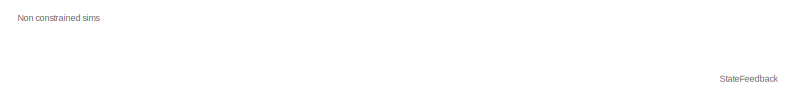
[diagram: root canvas - part 1/9, top left region]
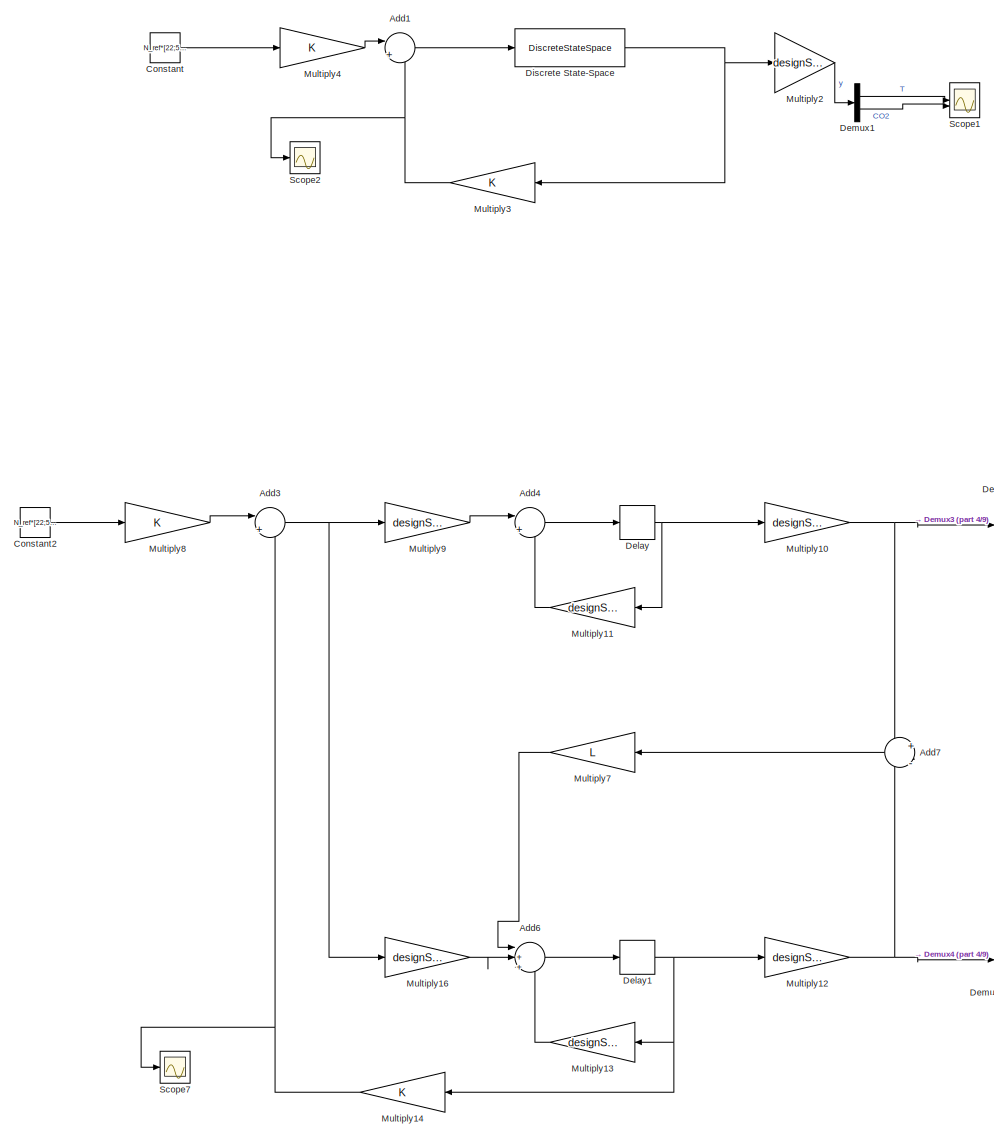
[diagram: root canvas - part 2/9, top left region]
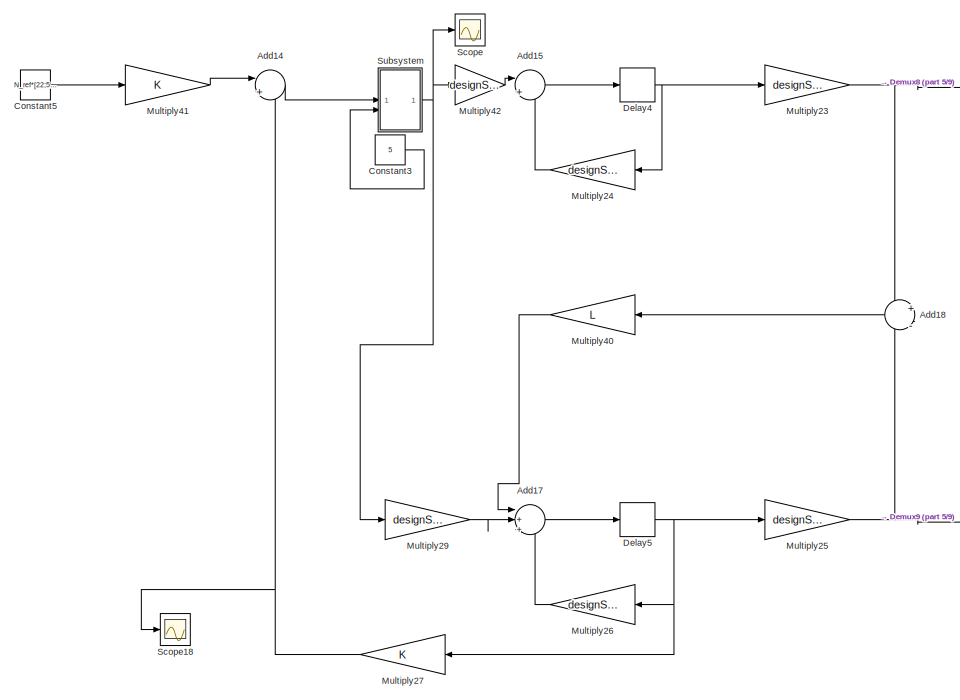
[diagram: root canvas - part 3/9, middle right region]
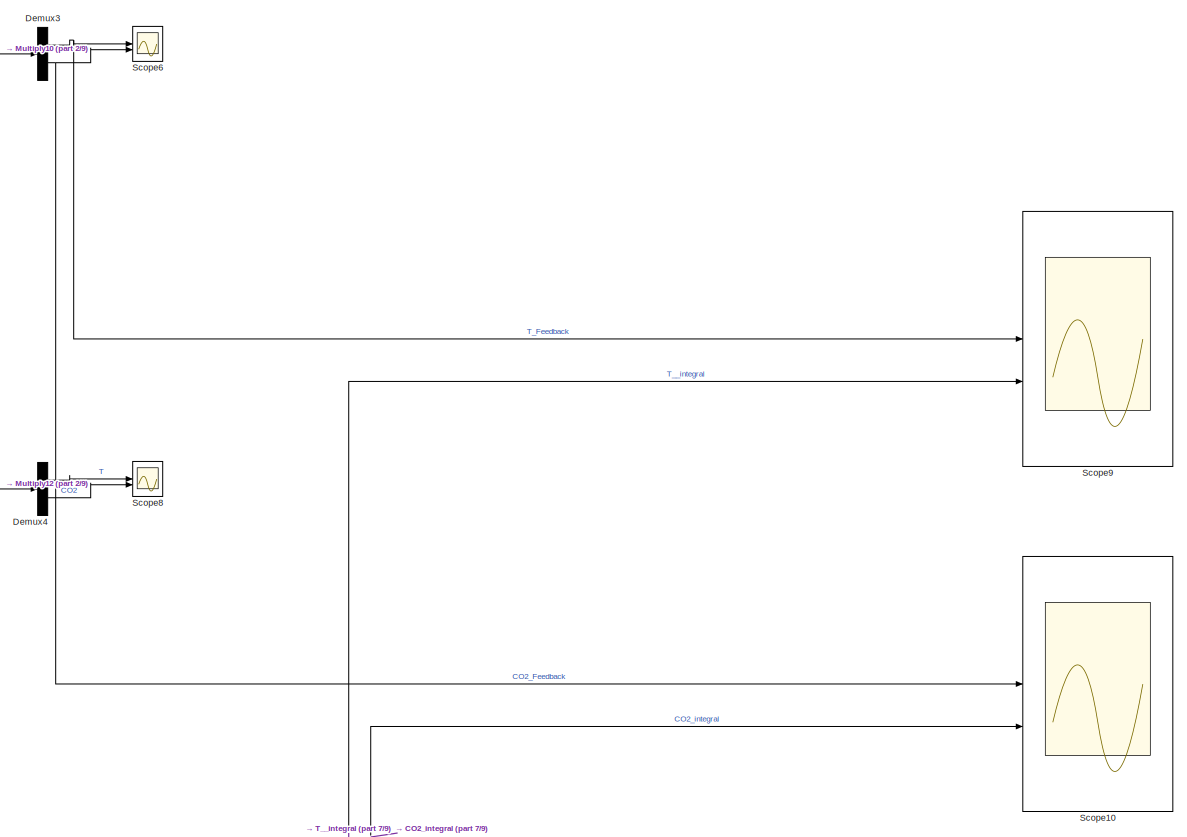
[diagram: root canvas - part 4/9, central region]
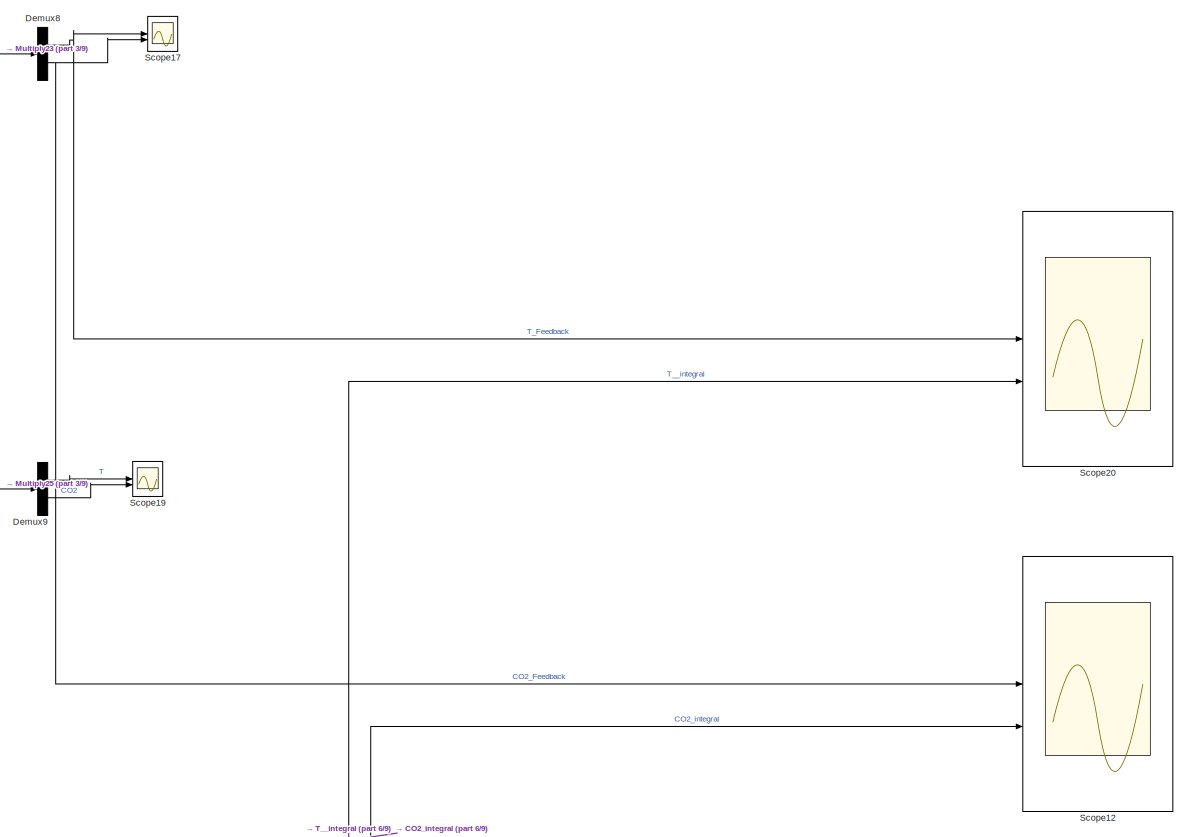
[diagram: root canvas - part 5/9, middle right region]
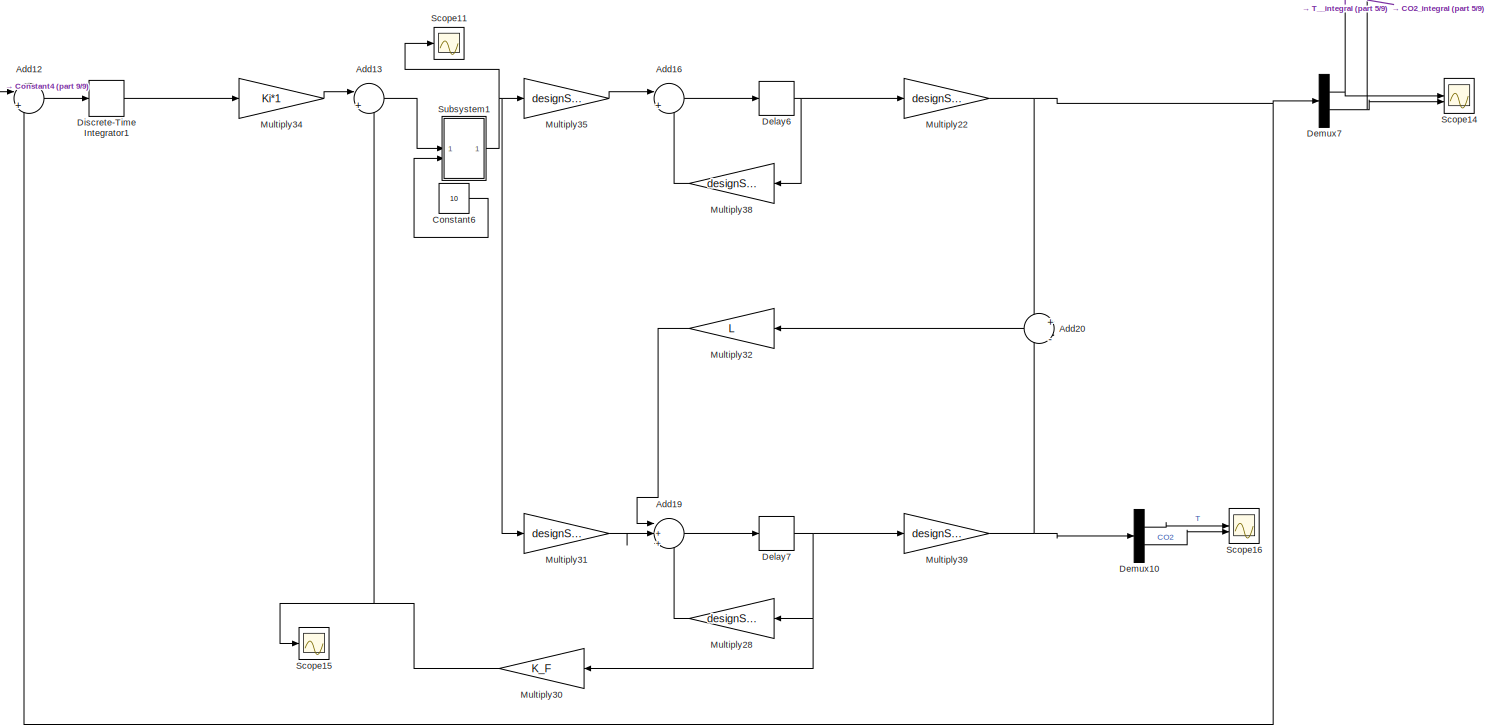
[diagram: root canvas - part 6/9, bottom right region]
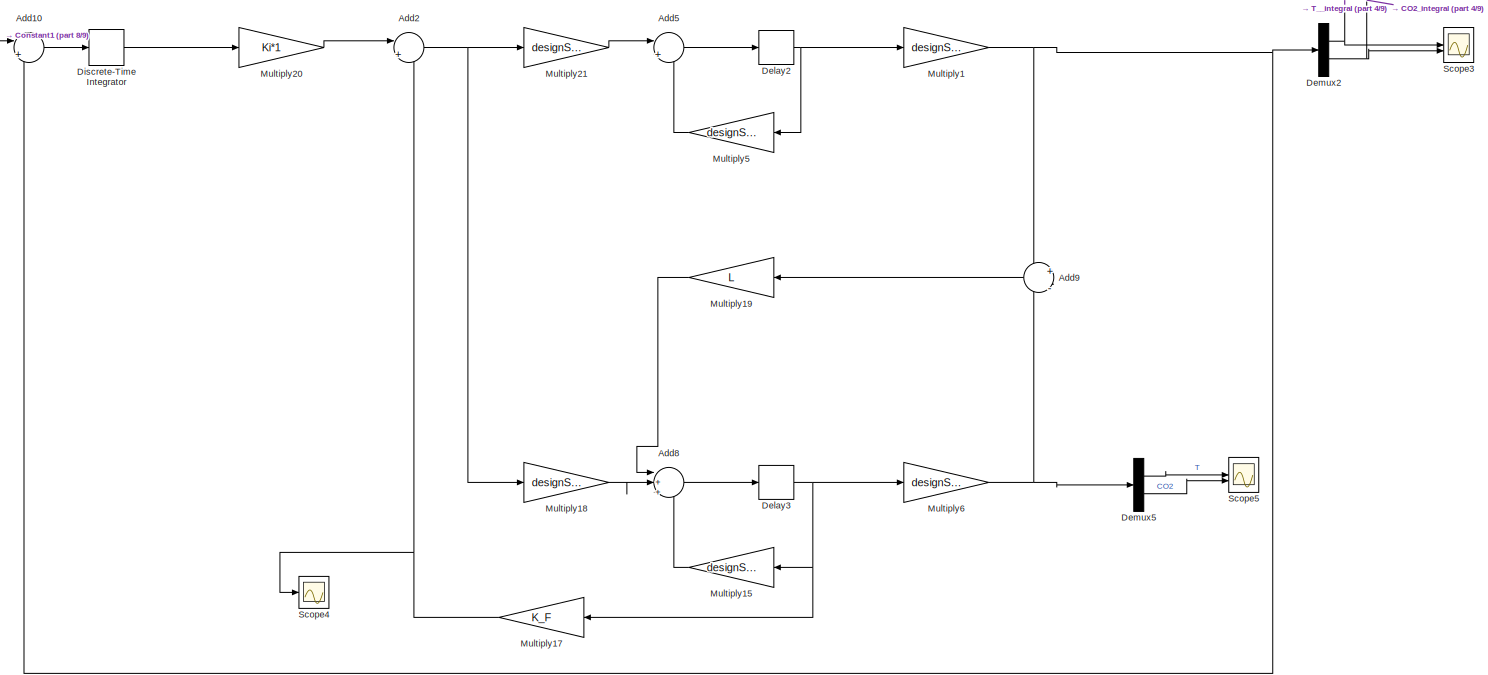
[diagram: root canvas - part 7/9, bottom left region]
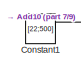
[diagram: root canvas - part 8/9, bottom left region]
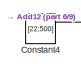
[diagram: root canvas - part 9/9, bottom center region]
MODEL slx_caf62d61fc65
KIND model
CONFIG AbsTol = auto
CONFIG EnableMultiTasking = off
CONFIG FixedStep = auto
CONFIG MaxStep = auto
CONFIG MinStep = auto
CONFIG RelTol = 1e-3
CONFIG SampleTimeConstraint = Unconstrained
CONFIG SolverName = VariableStepAuto
CONFIG StartTime = 0.0
CONFIG StopTime = 15000
BLOCK [Sum] Add1
  Inputs = |+-
BLOCK [Sum] Add10
  Inputs = |+-
BLOCK [Sum] Add12
  Inputs = |+-
BLOCK [Sum] Add13
  Inputs = |+-
BLOCK [Sum] Add14
  Inputs = |+-
BLOCK [Sum] Add15
  Inputs = |++
BLOCK [Sum] Add16
  Inputs = |++
BLOCK [Sum] Add17
  Inputs = |+++
BLOCK [Sum] Add18
  Inputs = +|-
  NameLocation = top
BLOCK [Sum] Add19
  Inputs = |+++
BLOCK [Sum] Add2
  Inputs = |+-
BLOCK [Sum] Add20
  Inputs = +|-
  NameLocation = top
BLOCK [Sum] Add3
  Inputs = |+-
BLOCK [Sum] Add4
  Inputs = |++
BLOCK [Sum] Add5
  Inputs = |++
BLOCK [Sum] Add6
  Inputs = |+++
BLOCK [Sum] Add7
  Inputs = +|-
  NameLocation = top
BLOCK [Sum] Add8
  Inputs = |+++
BLOCK [Sum] Add9
  Inputs = +|-
  NameLocation = top
BLOCK [Constant] Constant
  Value = N_ref*[22;500]
BLOCK [Constant] Constant1
  Value = [22;500]
BLOCK [Constant] Constant2
  Value = N_ref*[22;500]
BLOCK [Constant] Constant3
  Value = 5
BLOCK [Constant] Constant4
  Value = [22;500]
BLOCK [Constant] Constant5
  Value = N_ref*[22;500]
BLOCK [Constant] Constant6
  Value = 10
BLOCK [Delay] Delay
  DelayLength = 1
  InputPortMap = u0
BLOCK [Delay] Delay1
  DelayLength = 1
  InputPortMap = u0
BLOCK [Delay] Delay2
  DelayLength = 1
  InputPortMap = u0
BLOCK [Delay] Delay3
  DelayLength = 1
  InputPortMap = u0
BLOCK [Delay] Delay4
  DelayLength = 1
  InputPortMap = u0
BLOCK [Delay] Delay5
  DelayLength = 1
  InputPortMap = u0
BLOCK [Delay] Delay6
  DelayLength = 1
  InputPortMap = u0
BLOCK [Delay] Delay7
  DelayLength = 1
  InputPortMap = u0
BLOCK [Demux] Demux1
  Outputs = 2
BLOCK [Demux] Demux10
  Outputs = 2
BLOCK [Demux] Demux2
  Outputs = 2
BLOCK [Demux] Demux3
  Outputs = 2
BLOCK [Demux] Demux4
  Outputs = 2
BLOCK [Demux] Demux5
  Outputs = 2
BLOCK [Demux] Demux7
  Outputs = 2
BLOCK [Demux] Demux8
  Outputs = 2
BLOCK [Demux] Demux9
  Outputs = 2
BLOCK [DiscreteStateSpace] Discrete State-Space
  A = designSys.A
  B = designSys.B
  C = [1,0;0,1]
  D = designSys.D
  SampleTime = 15
BLOCK [DiscreteIntegrator] Discrete-Time Integrator
  ICPrevOutput = DiscIntNeverNeededParam
  ICPrevScaledInput = DiscIntNeverNeededParam
  InitialConditionSetting = Auto
  IntegratorMethod = Integration: Backward Euler
  SampleTime = 15
BLOCK [DiscreteIntegrator] Discrete-Time Integrator1
  ICPrevOutput = DiscIntNeverNeededParam
  ICPrevScaledInput = DiscIntNeverNeededParam
  InitialConditionSetting = Auto
  IntegratorMethod = Integration: Backward Euler
  SampleTime = 15
BLOCK [Gain] Multiply1
  Gain = designSys.C
  Multiplication = Matrix(K*u)
BLOCK [Gain] Multiply10
  Gain = designSys.C
  Multiplication = Matrix(K*u)
BLOCK [Gain] Multiply11
  Gain = designSys.A
  Multiplication = Matrix(K*u)
  NameLocation = top
BLOCK [Gain] Multiply12
  Gain = designSys.C
  Multiplication = Matrix(K*u)
BLOCK [Gain] Multiply13
  Gain = designSys.A
  Multiplication = Matrix(K*u)
  NameLocation = top
BLOCK [Gain] Multiply14
  Gain = K
  Multiplication = Matrix(K*u)
  NameLocation = top
BLOCK [Gain] Multiply15
  Gain = designSys.A
  Multiplication = Matrix(K*u)
  NameLocation = top
BLOCK [Gain] Multiply16
  Gain = designSys.B
  Multiplication = Matrix(K*u)
BLOCK [Gain] Multiply17
  Gain = K_F
  Multiplication = Matrix(K*u)
  NameLocation = top
BLOCK [Gain] Multiply18
  Gain = designSys.B
  Multiplication = Matrix(K*u)
BLOCK [Gain] Multiply19
  Gain = L
  Multiplication = Matrix(K*u)
  NameLocation = top
BLOCK [Gain] Multiply2
  Gain = designSys.C
  Multiplication = Matrix(K*u)
BLOCK [Gain] Multiply20
  Gain = Ki*1
  Multiplication = Matrix(K*u)
BLOCK [Gain] Multiply21
  Gain = designSys.B
  Multiplication = Matrix(K*u)
BLOCK [Gain] Multiply22
  Gain = designSys.C
  Multiplication = Matrix(K*u)
BLOCK [Gain] Multiply23
  Gain = designSys.C
  Multiplication = Matrix(K*u)
BLOCK [Gain] Multiply24
  Gain = designSys.A
  Multiplication = Matrix(K*u)
  NameLocation = top
BLOCK [Gain] Multiply25
  Gain = designSys.C
  Multiplication = Matrix(K*u)
BLOCK [Gain] Multiply26
  Gain = designSys.A
  Multiplication = Matrix(K*u)
  NameLocation = top
BLOCK [Gain] Multiply27
  Gain = K
  Multiplication = Matrix(K*u)
  NameLocation = top
BLOCK [Gain] Multiply28
  Gain = designSys.A
  Multiplication = Matrix(K*u)
  NameLocation = top
BLOCK [Gain] Multiply29
  Gain = designSys.B
  Multiplication = Matrix(K*u)
BLOCK [Gain] Multiply3
  Gain = K
  Multiplication = Matrix(K*u)
  NameLocation = top
BLOCK [Gain] Multiply30
  Gain = K_F
  Multiplication = Matrix(K*u)
  NameLocation = top
BLOCK [Gain] Multiply31
  Gain = designSys.B
  Multiplication = Matrix(K*u)
BLOCK [Gain] Multiply32
  Gain = L
  Multiplication = Matrix(K*u)
  NameLocation = top
BLOCK [Gain] Multiply34
  Gain = Ki*1
  Multiplication = Matrix(K*u)
BLOCK [Gain] Multiply35
  Gain = designSys.B
  Multiplication = Matrix(K*u)
BLOCK [Gain] Multiply38
  Gain = designSys.A
  Multiplication = Matrix(K*u)
  NameLocation = top
BLOCK [Gain] Multiply39
  Gain = designSys.C
  Multiplication = Matrix(K*u)
BLOCK [Gain] Multiply4
  Multiplication = Matrix(K*u)
BLOCK [Gain] Multiply40
  Gain = L
  Multiplication = Matrix(K*u)
  NameLocation = top
BLOCK [Gain] Multiply41
  Multiplication = Matrix(K*u)
BLOCK [Gain] Multiply42
  Gain = designSys.B
  Multiplication = Matrix(K*u)
BLOCK [Gain] Multiply5
  Gain = designSys.A
  Multiplication = Matrix(K*u)
  NameLocation = top
BLOCK [Gain] Multiply6
  Gain = designSys.C
  Multiplication = Matrix(K*u)
BLOCK [Gain] Multiply7
  Gain = L
  Multiplication = Matrix(K*u)
  NameLocation = top
BLOCK [Gain] Multiply8
  Multiplication = Matrix(K*u)
BLOCK [Gain] Multiply9
  Gain = designSys.B
  Multiplication = Matrix(K*u)
BLOCK [Scope] Scope
  Floating = off
  NumInputPorts = 1
  ScopeSpecificationString = Simulink.scopes.TimeScopeBlockCfg('CurrentConfiguration', extmgr.ConfigurationSet(extmgr.Configuration('Core','General UI',true),extmgr.Configuration('Core','Source UI',true),extmgr.Configuration('Sources','WiredSimulink',true,'DataLoggingVariableName','ScopeData9'),extmgr.Configuration('Visuals','Time Domain',true,'SerializedDisplays',{struct('MinYLimReal','-8.06818','MaxYLimReal','12.15909','YLa...<+1505ch>
BLOCK [Scope] Scope1
  Floating = off
  NumInputPorts = 2
  ScopeSpecificationString = Simulink.scopes.TimeScopeBlockCfg('CurrentConfiguration', extmgr.ConfigurationSet(extmgr.Configuration('Core','General UI',true),extmgr.Configuration('Core','Source UI',true),extmgr.Configuration('Sources','WiredSimulink',true),extmgr.Configuration('Visuals','Time Domain',true,'SerializedDisplays',{struct('MinYLimReal','-113.83217','MaxYLimReal','1024.48949','YLabelReal','','MinYLimMag',' 0.00000'...<+1469ch>
BLOCK [Scope] Scope10
  Floating = off
  NumInputPorts = 2
  ScopeSpecificationString = Simulink.scopes.TimeScopeBlockCfg('CurrentConfiguration', extmgr.ConfigurationSet(extmgr.Configuration('Core','General UI',true),extmgr.Configuration('Core','Source UI',true),extmgr.Configuration('Sources','WiredSimulink',true,'DataLoggingVariableName','ScopeData8'),extmgr.Configuration('Visuals','Time Domain',true,'SerializedDisplays',{struct('MinYLimReal','-16.01562','MaxYLimReal','524.60937','Y...<+1453ch>
BLOCK [Scope] Scope11
  Floating = off
  NumInputPorts = 1
  ScopeSpecificationString = Simulink.scopes.TimeScopeBlockCfg('CurrentConfiguration', extmgr.ConfigurationSet(extmgr.Configuration('Core','General UI',true),extmgr.Configuration('Core','Source UI',true),extmgr.Configuration('Sources','WiredSimulink',true,'DataLoggingVariableName','ScopeData11'),extmgr.Configuration('Visuals','Time Domain',true,'SerializedDisplays',{struct('MinYLimReal','-2.40764','MaxYLimReal','18.96464','YL...<+1506ch>
BLOCK [Scope] Scope12
  Floating = off
  NumInputPorts = 2
  ScopeSpecificationString = Simulink.scopes.TimeScopeBlockCfg('CurrentConfiguration', extmgr.ConfigurationSet(extmgr.Configuration('Core','General UI',true),extmgr.Configuration('Core','Source UI',true),extmgr.Configuration('Sources','WiredSimulink',true,'DataLoggingVariableName','ScopeData10'),extmgr.Configuration('Visuals','Time Domain',true,'SerializedDisplays',{struct('MinYLimReal','-16.01562','MaxYLimReal','524.60937','...<+1454ch>
BLOCK [Scope] Scope14
  Floating = off
  NumInputPorts = 2
  ScopeSpecificationString = Simulink.scopes.TimeScopeBlockCfg('CurrentConfiguration', extmgr.ConfigurationSet(extmgr.Configuration('Core','General UI',true),extmgr.Configuration('Core','Source UI',true),extmgr.Configuration('Sources','WiredSimulink',true,'DataLoggingVariableName','ScopeData12'),extmgr.Configuration('Visuals','Time Domain',true,'SerializedDisplays',{struct('MinYLimReal','-5.78575','MaxYLimReal','33.37935','YL...<+1447ch>
BLOCK [Scope] Scope15
  Floating = off
  NumInputPorts = 1
  ScopeSpecificationString = Simulink.scopes.TimeScopeBlockCfg('CurrentConfiguration', extmgr.ConfigurationSet(extmgr.Configuration('Core','General UI',true),extmgr.Configuration('Core','Source UI',true),extmgr.Configuration('Sources','WiredSimulink',true,'DataLoggingVariableName','ScopeData13'),extmgr.Configuration('Visuals','Time Domain',true,'SerializedDisplays',{struct('MinYLimReal','-30.78527','MaxYLimReal','10.6925','YL...<+1459ch>
BLOCK [Scope] Scope16
  Floating = off
  NumInputPorts = 2
  ScopeSpecificationString = Simulink.scopes.TimeScopeBlockCfg('CurrentConfiguration', extmgr.ConfigurationSet(extmgr.Configuration('Core','General UI',true),extmgr.Configuration('Core','Source UI',true),extmgr.Configuration('Sources','WiredSimulink',true,'DataLoggingVariableName','ScopeData14'),extmgr.Configuration('Visuals','Time Domain',true,'SerializedDisplays',{struct('MinYLimReal','-69.85439','MaxYLimReal','628.68952','...<+1434ch>
BLOCK [Scope] Scope17
  Floating = off
  NumInputPorts = 2
  ScopeSpecificationString = Simulink.scopes.TimeScopeBlockCfg('CurrentConfiguration', extmgr.ConfigurationSet(extmgr.Configuration('Core','General UI',true),extmgr.Configuration('Core','Source UI',true),extmgr.Configuration('Sources','WiredSimulink',true,'DataLoggingVariableName','ScopeData15'),extmgr.Configuration('Visuals','Time Domain',true,'SerializedDisplays',{struct('MinYLimReal','-32.06201','MaxYLimReal','288.55809','...<+1467ch>
BLOCK [Scope] Scope18
  Floating = off
  NumInputPorts = 1
  ScopeSpecificationString = Simulink.scopes.TimeScopeBlockCfg('CurrentConfiguration', extmgr.ConfigurationSet(extmgr.Configuration('Core','General UI',true),extmgr.Configuration('Core','Source UI',true),extmgr.Configuration('Sources','WiredSimulink',true,'DataLoggingVariableName','ScopeData16'),extmgr.Configuration('Visuals','Time Domain',true,'SerializedDisplays',{struct('MinYLimReal','-30.78527','MaxYLimReal','10.6925','YL...<+1459ch>
BLOCK [Scope] Scope19
  Floating = off
  NumInputPorts = 2
  ScopeSpecificationString = Simulink.scopes.TimeScopeBlockCfg('CurrentConfiguration', extmgr.ConfigurationSet(extmgr.Configuration('Core','General UI',true),extmgr.Configuration('Core','Source UI',true),extmgr.Configuration('Sources','WiredSimulink',true,'DataLoggingVariableName','ScopeData17'),extmgr.Configuration('Visuals','Time Domain',true,'SerializedDisplays',{struct('MinYLimReal','-69.85439','MaxYLimReal','628.68952','...<+1434ch>
BLOCK [Scope] Scope2
  Floating = off
  NumInputPorts = 1
  ScopeSpecificationString = Simulink.scopes.TimeScopeBlockCfg('CurrentConfiguration', extmgr.ConfigurationSet(extmgr.Configuration('Core','General UI',true),extmgr.Configuration('Core','Source UI',true),extmgr.Configuration('Sources','WiredSimulink',true,'DataLoggingVariableName','ScopeData1'),extmgr.Configuration('Visuals','Time Domain',true,'SerializedDisplays',{struct('MinYLimReal','-30.78527','MaxYLimReal','10.6925','YLa...<+1458ch>
BLOCK [Scope] Scope20
  Floating = off
  NumInputPorts = 2
  ScopeSpecificationString = Simulink.scopes.TimeScopeBlockCfg('CurrentConfiguration', extmgr.ConfigurationSet(extmgr.Configuration('Core','General UI',true),extmgr.Configuration('Core','Source UI',true),extmgr.Configuration('Sources','WiredSimulink',true,'DataLoggingVariableName','ScopeData18'),extmgr.Configuration('Visuals','Time Domain',true,'SerializedDisplays',{struct('MinYLimReal','-45.17513','MaxYLimReal','406.57618','...<+1451ch>
BLOCK [Scope] Scope3
  Floating = off
  NumInputPorts = 2
  ScopeSpecificationString = Simulink.scopes.TimeScopeBlockCfg('CurrentConfiguration', extmgr.ConfigurationSet(extmgr.Configuration('Core','General UI',true),extmgr.Configuration('Core','Source UI',true),extmgr.Configuration('Sources','WiredSimulink',true,'DataLoggingVariableName','ScopeData1'),extmgr.Configuration('Visuals','Time Domain',true,'SerializedDisplays',{struct('MinYLimReal','-16.01562','MaxYLimReal','524.60937','Y...<+1452ch>
BLOCK [Scope] Scope4
  Floating = off
  NumInputPorts = 1
  ScopeSpecificationString = Simulink.scopes.TimeScopeBlockCfg('CurrentConfiguration', extmgr.ConfigurationSet(extmgr.Configuration('Core','General UI',true),extmgr.Configuration('Core','Source UI',true),extmgr.Configuration('Sources','WiredSimulink',true,'DataLoggingVariableName','ScopeData2'),extmgr.Configuration('Visuals','Time Domain',true,'SerializedDisplays',{struct('MinYLimReal','-30.78527','MaxYLimReal','10.6925','YLa...<+1458ch>
BLOCK [Scope] Scope5
  Floating = off
  NumInputPorts = 2
  ScopeSpecificationString = Simulink.scopes.TimeScopeBlockCfg('CurrentConfiguration', extmgr.ConfigurationSet(extmgr.Configuration('Core','General UI',true),extmgr.Configuration('Core','Source UI',true),extmgr.Configuration('Sources','WiredSimulink',true,'DataLoggingVariableName','ScopeData3'),extmgr.Configuration('Visuals','Time Domain',true,'SerializedDisplays',{struct('MinYLimReal','-69.85439','MaxYLimReal','628.68952','Y...<+1433ch>
BLOCK [Scope] Scope6
  Floating = off
  NumInputPorts = 2
  ScopeSpecificationString = Simulink.scopes.TimeScopeBlockCfg('CurrentConfiguration', extmgr.ConfigurationSet(extmgr.Configuration('Core','General UI',true),extmgr.Configuration('Core','Source UI',true),extmgr.Configuration('Sources','WiredSimulink',true,'DataLoggingVariableName','ScopeData4'),extmgr.Configuration('Visuals','Time Domain',true,'SerializedDisplays',{struct('MinYLimReal','-69.85439','MaxYLimReal','628.68952','Y...<+1477ch>
BLOCK [Scope] Scope7
  Floating = off
  NumInputPorts = 1
  ScopeSpecificationString = Simulink.scopes.TimeScopeBlockCfg('CurrentConfiguration', extmgr.ConfigurationSet(extmgr.Configuration('Core','General UI',true),extmgr.Configuration('Core','Source UI',true),extmgr.Configuration('Sources','WiredSimulink',true,'DataLoggingVariableName','ScopeData5'),extmgr.Configuration('Visuals','Time Domain',true,'SerializedDisplays',{struct('MinYLimReal','-30.78527','MaxYLimReal','10.6925','YLa...<+1458ch>
BLOCK [Scope] Scope8
  Floating = off
  NumInputPorts = 2
  ScopeSpecificationString = Simulink.scopes.TimeScopeBlockCfg('CurrentConfiguration', extmgr.ConfigurationSet(extmgr.Configuration('Core','General UI',true),extmgr.Configuration('Core','Source UI',true),extmgr.Configuration('Sources','WiredSimulink',true,'DataLoggingVariableName','ScopeData6'),extmgr.Configuration('Visuals','Time Domain',true,'SerializedDisplays',{struct('MinYLimReal','-69.85439','MaxYLimReal','628.68952','Y...<+1433ch>
BLOCK [Scope] Scope9
  Floating = off
  NumInputPorts = 2
  ScopeSpecificationString = Simulink.scopes.TimeScopeBlockCfg('CurrentConfiguration', extmgr.ConfigurationSet(extmgr.Configuration('Core','General UI',true),extmgr.Configuration('Core','Source UI',true),extmgr.Configuration('Sources','WiredSimulink',true,'DataLoggingVariableName','ScopeData7'),extmgr.Configuration('Visuals','Time Domain',true,'SerializedDisplays',{struct('MinYLimReal','-2.76126','MaxYLimReal','24.85134','YLa...<+1470ch>
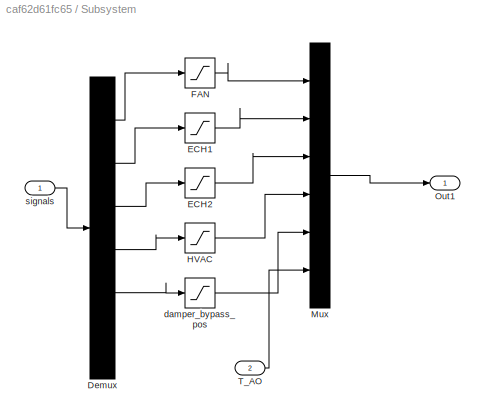
BLOCK [SubSystem] Subsystem
BLOCK [Demux] Subsystem/Demux
  Outputs = 6
BLOCK [Saturate] Subsystem/ECH1
  LowerLimit = 0
  UpperLimit = 100
BLOCK [Saturate] Subsystem/ECH2
  LowerLimit = 0
  UpperLimit = 100
BLOCK [Saturate] Subsystem/FAN
  LowerLimit = 0
  UpperLimit = 100
BLOCK [Saturate] Subsystem/HVAC
  LowerLimit = -100
  UpperLimit = 100
BLOCK [Mux] Subsystem/Mux
  DisplayOption = bar
  Inputs = 6
BLOCK [Outport] Subsystem/Out1
BLOCK [Inport] Subsystem/T_AO
  Port = 2
BLOCK [Saturate] Subsystem/damper_bypass_pos
  LowerLimit = 0
  UpperLimit = 100
BLOCK [Inport] Subsystem/signals
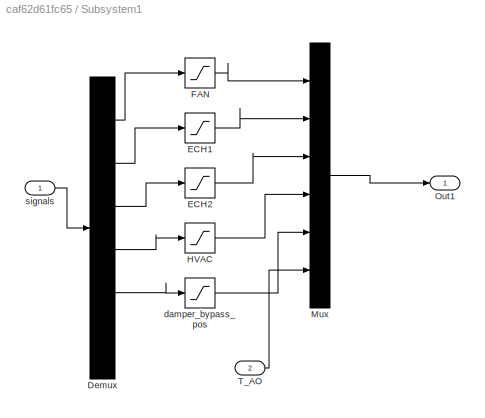
BLOCK [SubSystem] Subsystem1
BLOCK [Demux] Subsystem1/Demux
  Outputs = 6
BLOCK [Saturate] Subsystem1/ECH1
  LowerLimit = 0
  UpperLimit = 100
BLOCK [Saturate] Subsystem1/ECH2
  LowerLimit = 0
  UpperLimit = 100
BLOCK [Saturate] Subsystem1/FAN
  LowerLimit = 0
  UpperLimit = 100
BLOCK [Saturate] Subsystem1/HVAC
  LowerLimit = -100
  UpperLimit = 100
BLOCK [Mux] Subsystem1/Mux
  DisplayOption = bar
  Inputs = 6
BLOCK [Outport] Subsystem1/Out1
BLOCK [Inport] Subsystem1/T_AO
  Port = 2
BLOCK [Saturate] Subsystem1/damper_bypass_pos
  LowerLimit = 0
  UpperLimit = 100
BLOCK [Inport] Subsystem1/signals
ANNOTATION (root): Non constrained sims
ANNOTATION (root): StateFeedback
LINE Add10:1 -> Discrete-Time Integrator:1
LINE Add12:1 -> Discrete-Time Integrator1:1
LINE Add13:1 -> Subsystem1:1
LINE Add14:1 -> Subsystem:1
LINE Add15:1 -> Delay4:1
LINE Add16:1 -> Delay6:1
LINE Add17:1 -> Delay5:1
LINE Add18:1 -> Multiply40:1
LINE Add19:1 -> Delay7:1
LINE Add1:1 -> Discrete State-Space:1
LINE Add20:1 -> Multiply32:1
NET Add2:1 -> Multiply18:1, Multiply21:1
NET Add3:1 -> Multiply16:1, Multiply9:1
LINE Add4:1 -> Delay:1
LINE Add5:1 -> Delay2:1
LINE Add6:1 -> Delay1:1
LINE Add7:1 -> Multiply7:1
LINE Add8:1 -> Delay3:1
LINE Add9:1 -> Multiply19:1
LINE Constant1:1 -> Add10:1
LINE Constant2:1 -> Multiply8:1
LINE Constant3:1 -> Subsystem:2
LINE Constant4:1 -> Add12:1
LINE Constant5:1 -> Multiply41:1
LINE Constant6:1 -> Subsystem1:2
LINE Constant:1 -> Multiply4:1
NET Delay1:1 -> Multiply12:1, Multiply13:1, Multiply14:1
NET Delay2:1 -> Multiply1:1, Multiply5:1
NET Delay3:1 -> Multiply15:1, Multiply17:1, Multiply6:1
NET Delay4:1 -> Multiply23:1, Multiply24:1
NET Delay5:1 -> Multiply25:1, Multiply26:1, Multiply27:1
NET Delay6:1 -> Multiply22:1, Multiply38:1
NET Delay7:1 -> Multiply28:1, Multiply30:1, Multiply39:1
NET Delay:1 -> Multiply10:1, Multiply11:1
LINE Demux10:1 -> Scope16:1
LINE Demux10:2 -> Scope16:2
LINE Demux1:1 -> Scope1:1
LINE Demux1:2 -> Scope1:2
NET Demux2:1 -> Scope3:1, Scope9:2
NET Demux2:2 -> Scope10:2, Scope3:2
NET Demux3:1 -> Scope6:1, Scope9:1
NET Demux3:2 -> Scope10:1, Scope6:2
LINE Demux4:1 -> Scope8:1
LINE Demux4:2 -> Scope8:2
LINE Demux5:1 -> Scope5:1
LINE Demux5:2 -> Scope5:2
NET Demux7:1 -> Scope14:1, Scope20:2
NET Demux7:2 -> Scope12:2, Scope14:2
NET Demux8:1 -> Scope17:1, Scope20:1
NET Demux8:2 -> Scope12:1, Scope17:2
LINE Demux9:1 -> Scope19:1
LINE Demux9:2 -> Scope19:2
NET Discrete State-Space:1 -> Multiply2:1, Multiply3:1
LINE Discrete-Time Integrator1:1 -> Multiply34:1
LINE Discrete-Time Integrator:1 -> Multiply20:1
NET Multiply10:1 -> Add7:1, Demux3:1
LINE Multiply11:1 -> Add4:2
NET Multiply12:1 -> Add7:2, Demux4:1
LINE Multiply13:1 -> Add6:3
NET Multiply14:1 -> Add3:2, Scope7:1
LINE Multiply15:1 -> Add8:3
LINE Multiply16:1 -> Add6:2
NET Multiply17:1 -> Add2:2, Scope4:1
LINE Multiply18:1 -> Add8:2
LINE Multiply19:1 -> Add8:1
NET Multiply1:1 -> Add10:2, Add9:1, Demux2:1
LINE Multiply20:1 -> Add2:1
LINE Multiply21:1 -> Add5:1
NET Multiply22:1 -> Add12:2, Add20:1, Demux7:1
NET Multiply23:1 -> Add18:1, Demux8:1
LINE Multiply24:1 -> Add15:2
NET Multiply25:1 -> Add18:2, Demux9:1
LINE Multiply26:1 -> Add17:3
NET Multiply27:1 -> Add14:2, Scope18:1
LINE Multiply28:1 -> Add19:3
LINE Multiply29:1 -> Add17:2
LINE Multiply2:1 -> Demux1:1
NET Multiply30:1 -> Add13:2, Scope15:1
LINE Multiply31:1 -> Add19:2
LINE Multiply32:1 -> Add19:1
LINE Multiply34:1 -> Add13:1
LINE Multiply35:1 -> Add16:1
LINE Multiply38:1 -> Add16:2
NET Multiply39:1 -> Add20:2, Demux10:1
NET Multiply3:1 -> Add1:2, Scope2:1
LINE Multiply40:1 -> Add17:1
LINE Multiply41:1 -> Add14:1
LINE Multiply42:1 -> Add15:1
LINE Multiply4:1 -> Add1:1
LINE Multiply5:1 -> Add5:2
NET Multiply6:1 -> Add9:2, Demux5:1
LINE Multiply7:1 -> Add6:1
LINE Multiply8:1 -> Add3:1
LINE Multiply9:1 -> Add4:1
LINE Subsystem/Demux:1 -> Subsystem/FAN:1
LINE Subsystem/Demux:2 -> Subsystem/ECH1:1
LINE Subsystem/Demux:3 -> Subsystem/ECH2:1
LINE Subsystem/Demux:4 -> Subsystem/HVAC:1
LINE Subsystem/Demux:5 -> Subsystem/damper_bypass_pos:1
LINE Subsystem/ECH1:1 -> Subsystem/Mux:2
LINE Subsystem/ECH2:1 -> Subsystem/Mux:3
LINE Subsystem/FAN:1 -> Subsystem/Mux:1
LINE Subsystem/HVAC:1 -> Subsystem/Mux:4
LINE Subsystem/Mux:1 -> Subsystem/Out1:1
LINE Subsystem/T_AO:1 -> Subsystem/Mux:6
LINE Subsystem/damper_bypass_pos:1 -> Subsystem/Mux:5
LINE Subsystem/signals:1 -> Subsystem/Demux:1
LINE Subsystem1/Demux:1 -> Subsystem1/FAN:1
LINE Subsystem1/Demux:2 -> Subsystem1/ECH1:1
LINE Subsystem1/Demux:3 -> Subsystem1/ECH2:1
LINE Subsystem1/Demux:4 -> Subsystem1/HVAC:1
LINE Subsystem1/Demux:5 -> Subsystem1/damper_bypass_pos:1
LINE Subsystem1/ECH1:1 -> Subsystem1/Mux:2
LINE Subsystem1/ECH2:1 -> Subsystem1/Mux:3
LINE Subsystem1/FAN:1 -> Subsystem1/Mux:1
LINE Subsystem1/HVAC:1 -> Subsystem1/Mux:4
LINE Subsystem1/Mux:1 -> Subsystem1/Out1:1
LINE Subsystem1/T_AO:1 -> Subsystem1/Mux:6
LINE Subsystem1/damper_bypass_pos:1 -> Subsystem1/Mux:5
LINE Subsystem1/signals:1 -> Subsystem1/Demux:1
NET Subsystem1:1 -> Multiply31:1, Multiply35:1, Scope11:1
NET Subsystem:1 -> Multiply29:1, Multiply42:1, Scope:1
note: NET lines group one-source signal fan-out (src -> all destinations, sorted); 1:1 wires keep LINE
